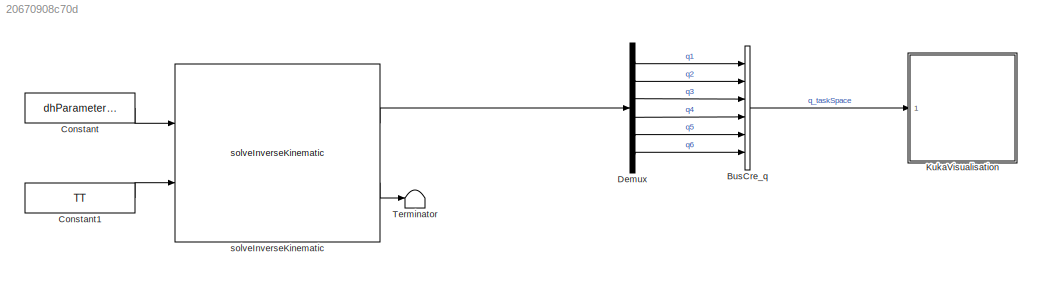
MODEL slx_20670908c70d
KIND model
CONFIG AbsTol = auto
CONFIG EnableMultiTasking = off
CONFIG FixedStep = auto
CONFIG MaxStep = auto
CONFIG MinStep = auto
CONFIG RelTol = 1e-3
CONFIG SampleTimeConstraint = Unconstrained
CONFIG SolverName = VariableStepAuto
CONFIG StartTime = 0.0
CONFIG StopTime = 10.0
BLOCK [BusCreator] BusCre_q
  DisplayOption = bar
  InheritFromInputs = on
  Inputs = q1,q2,q3,q4,q5,q6
  OutDataTypeStr = Bus: Bus_q
  Ports = [6, 1]
BLOCK [Constant] Constant
  OutDataTypeStr = Bus: Bus_dhParameter
  Value = dhParametersStruct
BLOCK [Constant] Constant1
  Value = TT
BLOCK [Demux] Demux
  Outputs = 6
  Ports = [1, 6]
BLOCK [SubSystem] KukaVisualisation
  Ports = [1]
  ReferencedSubsystem = KukaVisualisationModel
  RequestExecContextInheritance = off
BLOCK [Terminator] Terminator
BLOCK [Reference] solveInverseKinematic  REF=lib_Solver/solveInverseKinematic
  Ports = [2, 2]
  SourceBlock = lib_Solver/solveInverseKinematic
LINE BusCre_q:1 -> KukaVisualisation:1
LINE Constant1:1 -> solveInverseKinematic:2
LINE Constant:1 -> solveInverseKinematic:1
LINE Demux:1 -> BusCre_q:1
LINE Demux:2 -> BusCre_q:2
LINE Demux:3 -> BusCre_q:3
LINE Demux:4 -> BusCre_q:4
LINE Demux:5 -> BusCre_q:5
LINE Demux:6 -> BusCre_q:6
LINE solveInverseKinematic:1 -> Demux:1
LINE solveInverseKinematic:2 -> Terminator:1
